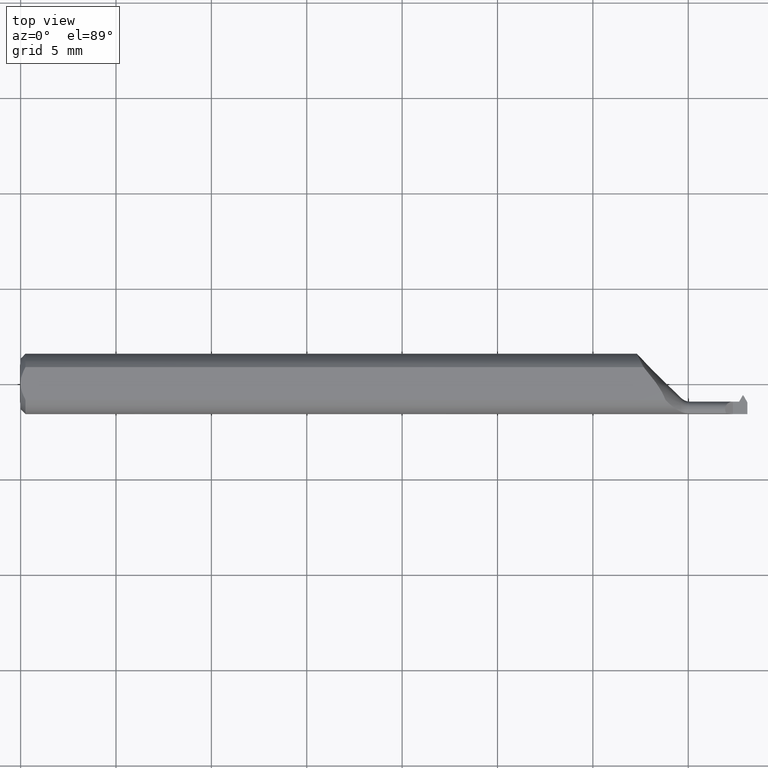
[diagram: clean part render]
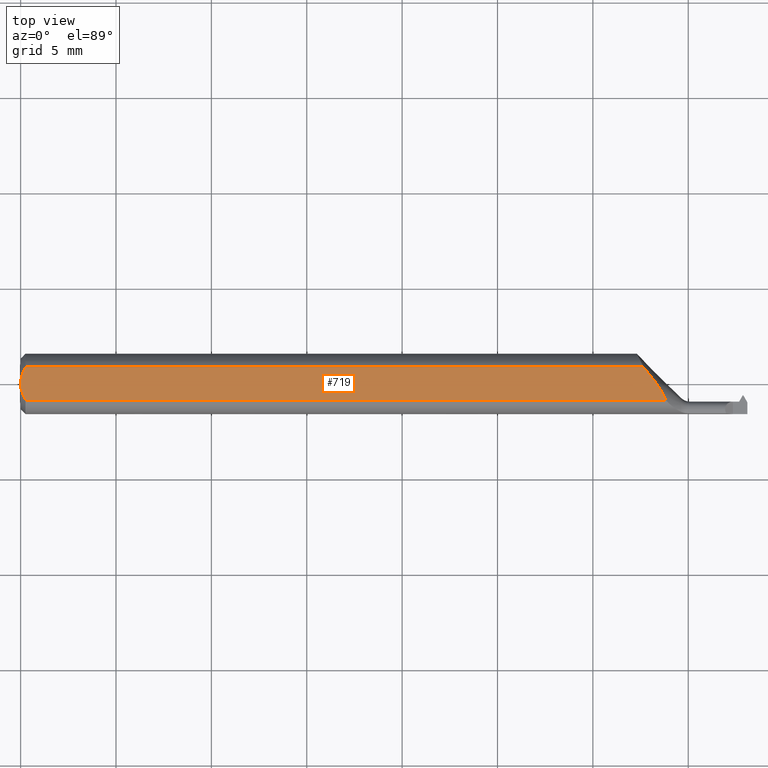
[diagram: same view with one face highlighted and labeled with its STEP entity id]
A machine part, top view. The second image highlights one B-rep face of the part: STEP entity #719.
In plain terms, the highlighted planar face has unit normal (0, 0, 1).
Its self-contained STEP definition (entity closure, byte-faithful):
#8 = VECTOR ( 'NONE', #378, 39.37007874015748143 ) ;
#12 = DIRECTION ( 'NONE',  ( 1.000000000000000000, 0.000000000000000000, -0.000000000000000000 ) ) ;
#22 = CARTESIAN_POINT ( 'NONE',  ( 1.325903638438954646, -0.02116583655497123601, 0.05234999999999997988 ) ) ;
#29 = ORIENTED_EDGE ( 'NONE', *, *, #689, .T. ) ;
#31 = CARTESIAN_POINT ( 'NONE',  ( 1.328966724932452825, -0.02737628946790733944, 0.05234999999999997294 ) ) ;
#108 = CARTESIAN_POINT ( 'NONE',  ( -1.104610997828796865E-15, -0.005965286321680308458, 0.05234999999999996600 ) ) ;
#150 = PLANE ( 'NONE',  #715 ) ;
#153 = ORIENTED_EDGE ( 'NONE', *, *, #219, .F. ) ;
#174 = CARTESIAN_POINT ( 'NONE',  ( 1.331127731721387430, -0.03386738844375222768, 0.05234999999999997294 ) ) ;
#181 = CARTESIAN_POINT ( 'NONE',  ( 0.001055043921632921322, -0.01186408073210964975, 0.05234999999999997988 ) ) ;
#219 = EDGE_CURVE ( 'NONE', #577, #417, #436, .T. ) ;
#234 = CARTESIAN_POINT ( 'NONE',  ( -1.133440131013889109E-15, 0.005954997531774002505, 0.05234999999999997294 ) ) ;
#247 = DIRECTION ( 'NONE',  ( 1.000000000000000000, 0.000000000000000000, 0.000000000000000000 ) ) ;
#250 = VERTEX_POINT ( 'NONE', #452 ) ;
#317 = ORIENTED_EDGE ( 'NONE', *, *, #842, .T. ) ;
#326 = CARTESIAN_POINT ( 'NONE',  ( 1.315224182788650387, -0.003615021247189844494, 0.05234999999999997294 ) ) ;
#368 = B_SPLINE_CURVE_WITH_KNOTS ( 'NONE', 3,
 ( #540, #902, #546, #181, #108, #614 ),
 .UNSPECIFIED., .F., .F.,
 ( 4, 2, 4 ),
 ( 0.002189598257423874383, 0.002641492532680540361, 0.003093386807937206339 ),
 .UNSPECIFIED. ) ;
#378 = DIRECTION ( 'NONE',  ( -1.000000000000000000, -0.000000000000000000, -0.000000000000000000 ) ) ;
#391 = EDGE_CURVE ( 'NONE', #605, #577, #368, .T. ) ;
#400 = ORIENTED_EDGE ( 'NONE', *, *, #391, .F. ) ;
#417 = VERTEX_POINT ( 'NONE', #829 ) ;
#427 = CARTESIAN_POINT ( 'NONE',  ( 0.009999999999999887451, -0.03386738844375224849, 0.05234999999999997294 ) ) ;
#436 = B_SPLINE_CURVE_WITH_KNOTS ( 'NONE', 3,
 ( #512, #234, #523, #590, #815, #887 ),
 .UNSPECIFIED., .F., .F.,
 ( 4, 2, 4 ),
 ( 0.003093386807937206339, 0.003544501666246027347, 0.003995616524554848788 ),
 .UNSPECIFIED. ) ;
#452 = CARTESIAN_POINT ( 'NONE',  ( 1.285778608326025862, 0.03386738844375224849, 0.05234999999999997294 ) ) ;
#511 = FACE_OUTER_BOUND ( 'NONE', #802, .T. ) ;
#512 = CARTESIAN_POINT ( 'NONE',  ( 0.000000000000000000, 0.000000000000000000, 0.05234999999999997294 ) ) ;
#523 = CARTESIAN_POINT ( 'NONE',  ( 0.001063697276021325104, 0.01189177144351695990, 0.05234999999999997988 ) ) ;
#540 = CARTESIAN_POINT ( 'NONE',  ( 0.009999999999999887451, -0.03386738844375224849, 0.05234999999999997294 ) ) ;
#545 = CARTESIAN_POINT ( 'NONE',  ( 1.294639298171978536, 0.02350123349129881051, 0.05234999999999997294 ) ) ;
#546 = CARTESIAN_POINT ( 'NONE',  ( 0.004679365186780987812, -0.02325953974079660730, 0.05234999999999997988 ) ) ;
#566 = CARTESIAN_POINT ( 'NONE',  ( 0.000000000000000000, 0.000000000000000000, 0.05234999999999997294 ) ) ;
#577 = VERTEX_POINT ( 'NONE', #566 ) ;
#583 = B_SPLINE_CURVE_WITH_KNOTS ( 'NONE', 3,
 ( #174, #31, #22, #678, #326, #901, #545, #612 ),
 .UNSPECIFIED., .F., .F.,
 ( 4, 2, 2, 4 ),
 ( 0.001839256232207844800, 0.002352703369855394834, 0.002866150507502944651, 0.003893044782798044286 ),
 .UNSPECIFIED. ) ;
#590 = CARTESIAN_POINT ( 'NONE',  ( 0.004671770759546750584, 0.02323517832780109052, 0.05234999999999998682 ) ) ;
#605 = VERTEX_POINT ( 'NONE', #427 ) ;
#612 = CARTESIAN_POINT ( 'NONE',  ( 1.285778608326025862, 0.03386738844375224849, 0.05234999999999997294 ) ) ;
#614 = CARTESIAN_POINT ( 'NONE',  ( 0.000000000000000000, 0.000000000000000000, 0.05234999999999997294 ) ) ;
#660 = CARTESIAN_POINT ( 'NONE',  ( 1.630958352158234037, 0.06235000000000000264, 0.05234999999999997294 ) ) ;
#678 = CARTESIAN_POINT ( 'NONE',  ( 1.319027108239479107, -0.009278969497925400323, 0.05234999999999998682 ) ) ;
#689 = EDGE_CURVE ( 'NONE', #250, #417, #747, .T. ) ;
#697 = LINE ( 'NONE', #768, #837 ) ;
#715 = AXIS2_PLACEMENT_3D ( 'NONE', #660, #752, #12 ) ;
#719 = ADVANCED_FACE ( 'NONE', ( #511 ), #150, .T. ) ;
#733 = ORIENTED_EDGE ( 'NONE', *, *, #811, .T. ) ;
#734 = CARTESIAN_POINT ( 'NONE',  ( 1.331127731721387430, -0.03386738844375222768, 0.05234999999999997294 ) ) ;
#736 = VERTEX_POINT ( 'NONE', #734 ) ;
#747 = LINE ( 'NONE', #875, #8 ) ;
#752 = DIRECTION ( 'NONE',  ( 0.000000000000000000, 0.000000000000000000, 1.000000000000000000 ) ) ;
#768 = CARTESIAN_POINT ( 'NONE',  ( 0.000000000000000000, -0.03386738844375224849, 0.05234999999999997294 ) ) ;
#802 = EDGE_LOOP ( 'NONE', ( #733, #317, #29, #153, #400 ) ) ;
#811 = EDGE_CURVE ( 'NONE', #605, #736, #697, .T. ) ;
#815 = CARTESIAN_POINT ( 'NONE',  ( 0.007185421074056196067, 0.02868573718286566293, 0.05234999999999997294 ) ) ;
#829 = CARTESIAN_POINT ( 'NONE',  ( 0.009999999999999887451, 0.03386738844375224849, 0.05234999999999997294 ) ) ;
#837 = VECTOR ( 'NONE', #247, 39.37007874015748143 ) ;
#842 = EDGE_CURVE ( 'NONE', #736, #250, #583, .T. ) ;
#875 = CARTESIAN_POINT ( 'NONE',  ( 0.000000000000000000, 0.03386738844375224849, 0.05234999999999997294 ) ) ;
#887 = CARTESIAN_POINT ( 'NONE',  ( 0.009999999999999887451, 0.03386738844375224849, 0.05234999999999997294 ) ) ;
#901 = CARTESIAN_POINT ( 'NONE',  ( 1.303286918736876521, 0.01297177664154522576, 0.05234999999999997988 ) ) ;
#902 = CARTESIAN_POINT ( 'NONE',  ( 0.007163450771350382031, -0.02864528976618618133, 0.05234999999999997294 ) ) ;